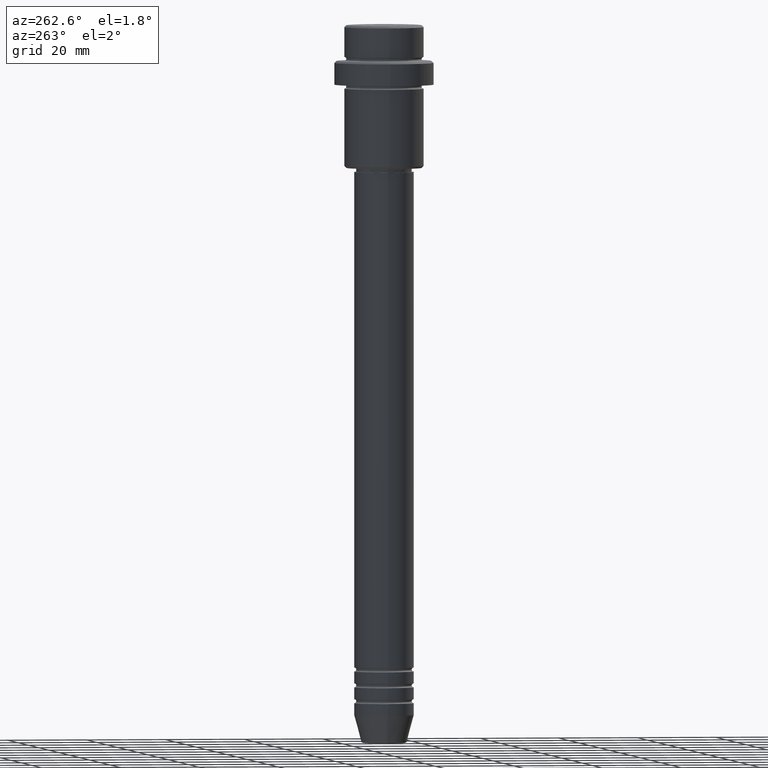
[diagram: clean part render]
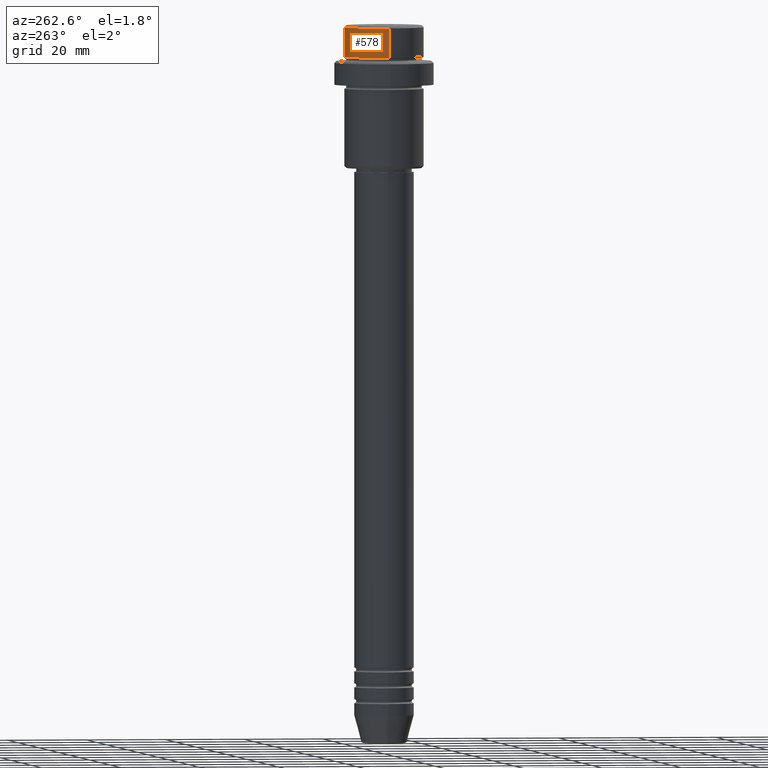
[diagram: same view with one face highlighted and labeled with its STEP entity id]
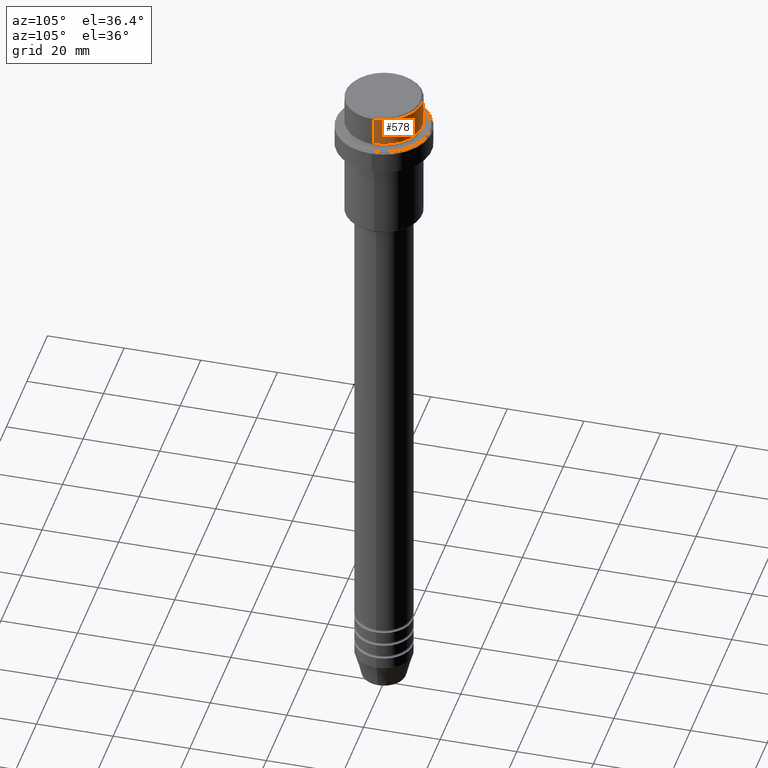
[diagram: same view with one face highlighted and labeled with its STEP entity id]
A machine part, auxiliary view. The second image highlights one B-rep face of the part: STEP entity #578.
A second angle (auxiliary view) of the same face is appended — the face is thin or edge-on in the first view.
In plain terms, the highlighted cylindrical surface (partial cylindrical patch) has radius 10 mm, axis along (-0, -0, 1).
Its self-contained STEP definition (entity closure, byte-faithful):
#1 = CARTESIAN_POINT ( 'NONE',  ( 0.000000000000000000, 0.000000000000000000, 0.000000000000000000 ) ) ;
#58 = EDGE_CURVE ( 'NONE', #259, #1165, #1201, .T. ) ;
#99 = ORIENTED_EDGE ( 'NONE', *, *, #422, .T. ) ;
#111 = CARTESIAN_POINT ( 'NONE',  ( 9.999999999999998224, 0.000000000000000000, 0.000000000000000000 ) ) ;
#119 = DIRECTION ( 'NONE',  ( -0.000000000000000000, -0.000000000000000000, 1.000000000000000000 ) ) ;
#146 = EDGE_CURVE ( 'NONE', #259, #618, #1185, .T. ) ;
#147 = DIRECTION ( 'NONE',  ( 1.000000000000000000, 0.000000000000000000, 0.000000000000000000 ) ) ;
#181 = AXIS2_PLACEMENT_3D ( 'NONE', #642, #301, #403 ) ;
#205 = DIRECTION ( 'NONE',  ( -0.000000000000000000, -0.000000000000000000, 1.000000000000000000 ) ) ;
#259 = VERTEX_POINT ( 'NONE', #824 ) ;
#301 = DIRECTION ( 'NONE',  ( 0.000000000000000000, 0.000000000000000000, -1.000000000000000000 ) ) ;
#329 = EDGE_LOOP ( 'NONE', ( #1147, #692, #99, #1397 ) ) ;
#355 = DIRECTION ( 'NONE',  ( -0.000000000000000000, -0.000000000000000000, 1.000000000000000000 ) ) ;
#393 = CARTESIAN_POINT ( 'NONE',  ( 9.999999999999998224, 0.000000000000000000, -0.4999999999999692468 ) ) ;
#394 = EDGE_CURVE ( 'NONE', #618, #731, #859, .T. ) ;
#403 = DIRECTION ( 'NONE',  ( 1.000000000000000000, 0.000000000000000000, 0.000000000000000000 ) ) ;
#422 = EDGE_CURVE ( 'NONE', #731, #1165, #1143, .T. ) ;
#430 = VECTOR ( 'NONE', #119, 1000.000000000000000 ) ;
#434 = CYLINDRICAL_SURFACE ( 'NONE', #663, 9.999999999999998224 ) ;
#462 = DIRECTION ( 'NONE',  ( 1.000000000000000000, 0.000000000000000000, 0.000000000000000000 ) ) ;
#578 = ADVANCED_FACE ( 'NONE', ( #1317 ), #434, .T. ) ;
#608 = AXIS2_PLACEMENT_3D ( 'NONE', #924, #803, #147 ) ;
#618 = VERTEX_POINT ( 'NONE', #1135 ) ;
#642 = CARTESIAN_POINT ( 'NONE',  ( 0.000000000000000000, 0.000000000000000000, -0.4999999999999692468 ) ) ;
#663 = AXIS2_PLACEMENT_3D ( 'NONE', #1, #355, #462 ) ;
#692 = ORIENTED_EDGE ( 'NONE', *, *, #394, .T. ) ;
#731 = VERTEX_POINT ( 'NONE', #1358 ) ;
#803 = DIRECTION ( 'NONE',  ( -0.000000000000000000, -0.000000000000000000, 1.000000000000000000 ) ) ;
#824 = CARTESIAN_POINT ( 'NONE',  ( 9.999999999999998224, 0.000000000000000000, -7.999999999999998224 ) ) ;
#859 = LINE ( 'NONE', #948, #1096 ) ;
#924 = CARTESIAN_POINT ( 'NONE',  ( 0.000000000000000000, 0.000000000000000000, -7.999999999999998224 ) ) ;
#948 = CARTESIAN_POINT ( 'NONE',  ( -9.999999999999998224, 1.224646799147353059E-15, 0.000000000000000000 ) ) ;
#1096 = VECTOR ( 'NONE', #205, 1000.000000000000000 ) ;
#1135 = CARTESIAN_POINT ( 'NONE',  ( -9.999999999999998224, 1.224646799147353059E-15, -7.999999999999998224 ) ) ;
#1143 = CIRCLE ( 'NONE', #181, 9.999999999999998224 ) ;
#1147 = ORIENTED_EDGE ( 'NONE', *, *, #146, .T. ) ;
#1165 = VERTEX_POINT ( 'NONE', #393 ) ;
#1185 = CIRCLE ( 'NONE', #608, 9.999999999999998224 ) ;
#1201 = LINE ( 'NONE', #111, #430 ) ;
#1317 = FACE_OUTER_BOUND ( 'NONE', #329, .T. ) ;
#1358 = CARTESIAN_POINT ( 'NONE',  ( -9.999999999999998224, 1.224646799147353059E-15, -0.4999999999999692468 ) ) ;
#1397 = ORIENTED_EDGE ( 'NONE', *, *, #58, .F. ) ;